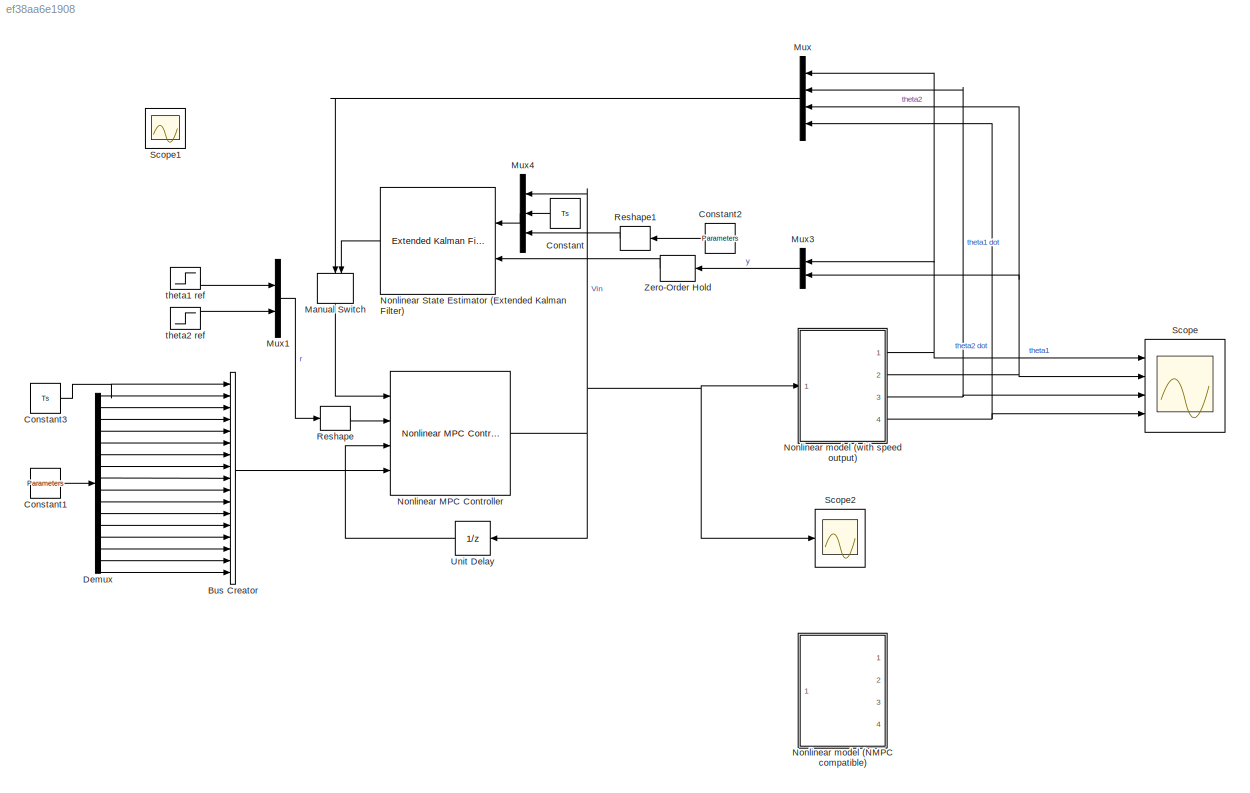
MODEL slx_ef38aa6e1908
KIND model
CONFIG AbsTol = auto
CONFIG EnableMultiTasking = off
CONFIG FixedStep = Ts/10
CONFIG MaxStep = 1e-3
CONFIG MinStep = auto
CONFIG RelTol = 1e-3
CONFIG SampleTimeConstraint = Unconstrained
CONFIG Solver = ode4
CONFIG SolverName = ode4
CONFIG StartTime = 0.0
CONFIG StopTime = Duration
BLOCK [BusCreator] Bus Creator
  DisplayOption = bar
  InheritFromInputs = on
  Inputs = 17
  NonVirtualBus = on
  OutDataTypeStr = Bus: customBusObject
  Ports = [17, 1]
BLOCK [Constant] Constant
  Value = Ts
BLOCK [Constant] Constant1
  Value = Parameters
BLOCK [Constant] Constant2
  Value = Parameters
BLOCK [Constant] Constant3
  Value = Ts
BLOCK [Demux] Demux
  DisplayOption = bar
  Outputs = 16
  Ports = [1, 16]
BLOCK [ManualSwitch] Manual Switch
BLOCK [Mux] Mux
  DisplayOption = bar
  Ports = [4, 1]
BLOCK [Mux] Mux1
  DisplayOption = bar
  Inputs = 2
  Ports = [2, 1]
BLOCK [Mux] Mux3
  DisplayOption = bar
  Inputs = 2
  Ports = [2, 1]
BLOCK [Mux] Mux4
  DisplayOption = bar
  Inputs = 3
  Ports = [3, 1]
BLOCK [Reference] Nonlinear MPC Controller  REF=mpclib/Nonlinear MPC Controller  (lib defined in mdl_ae329e0e0455)
  Ports = [4, 1]
  SourceBlock = mpclib/Nonlinear MPC Controller
  SourceProductBaseCode = MP
  SourceProductName = Model Predictive Control Toolbox
  SourceType = NonlinearMPC
BLOCK [Reference] Nonlinear State Estimator (Extended Kalman Filter)  REF=sharedTrackingLibrary/Extended Kalman Filter
  Ports = [2, 1]
  SourceBlock = sharedTrackingLibrary/Extended Kalman Filter
  SourceProductBaseCode = DR
  SourceProductName = Automated Driving Toolbox
  SourceType = Extended Kalman Filter
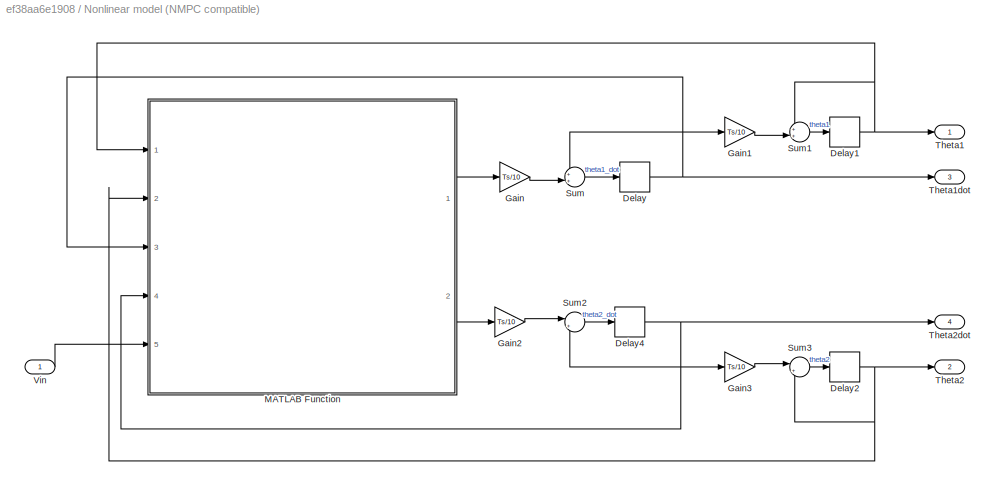
BLOCK [SubSystem] Nonlinear model (NMPC compatible)
  Ports = [1, 4]
  RequestExecContextInheritance = off
BLOCK [Delay] Nonlinear model (NMPC compatible)/Delay
  DelayLength = 1
  InputPortMap = u0
  Ports = [1, 1]
BLOCK [Delay] Nonlinear model (NMPC compatible)/Delay1
  DelayLength = 1
  InputPortMap = u0
  Ports = [1, 1]
BLOCK [Delay] Nonlinear model (NMPC compatible)/Delay2
  DelayLength = 1
  InputPortMap = u0
  Ports = [1, 1]
BLOCK [Delay] Nonlinear model (NMPC compatible)/Delay4
  DelayLength = 1
  InputPortMap = u0
  Ports = [1, 1]
BLOCK [Gain] Nonlinear model (NMPC compatible)/Gain
  Gain = Ts/10
  OutDataTypeStr = Inherit: Inherit via internal rule
  ParamDataTypeStr = Inherit: Inherit via internal rule
  SaturateOnIntegerOverflow = off
BLOCK [Gain] Nonlinear model (NMPC compatible)/Gain1
  Gain = Ts/10
  OutDataTypeStr = Inherit: Inherit via internal rule
  ParamDataTypeStr = Inherit: Inherit via internal rule
  SaturateOnIntegerOverflow = off
BLOCK [Gain] Nonlinear model (NMPC compatible)/Gain2
  Gain = Ts/10
  OutDataTypeStr = Inherit: Inherit via internal rule
  ParamDataTypeStr = Inherit: Inherit via internal rule
  SaturateOnIntegerOverflow = off
BLOCK [Gain] Nonlinear model (NMPC compatible)/Gain3
  Gain = Ts/10
  OutDataTypeStr = Inherit: Inherit via internal rule
  ParamDataTypeStr = Inherit: Inherit via internal rule
  SaturateOnIntegerOverflow = off
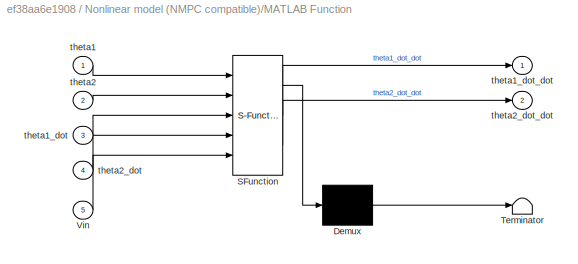
BLOCK [SubSystem] Nonlinear model (NMPC compatible)/MATLAB Function
  ErrorFcn = Stateflow.Translate.translate
  PermitHierarchicalResolution = ExplicitOnly
  Ports = [5, 2]
  RequestExecContextInheritance = off
  SFBlockType = MATLAB Function
  SystemSampleTime = 0.01
  TreatAsAtomicUnit = on
BLOCK [Demux] Nonlinear model (NMPC compatible)/MATLAB Function/ Demux 
  DisplayOption = bar
  Outputs = 1
  Ports = [1, 1]
BLOCK [S-Function] Nonlinear model (NMPC compatible)/MATLAB Function/ SFunction 
  EnableBusSupport = on
  FunctionName = sf_sfun
  PortCounts = [5 3]
  Ports = [5, 3]
  SFcnIsStateOwnerBlock = off
  SFunctionDeploymentMode = off
  Tag = Stateflow S-Function 5
BLOCK [Terminator] Nonlinear model (NMPC compatible)/MATLAB Function/ Terminator 
BLOCK [Inport] Nonlinear model (NMPC compatible)/MATLAB Function/Vin
  IconDisplay = Port number
  Port = 5
BLOCK [Inport] Nonlinear model (NMPC compatible)/MATLAB Function/theta1
  IconDisplay = Port number
BLOCK [Inport] Nonlinear model (NMPC compatible)/MATLAB Function/theta1_dot
  IconDisplay = Port number
  Port = 3
BLOCK [Outport] Nonlinear model (NMPC compatible)/MATLAB Function/theta1_dot_dot
  IconDisplay = Port number
BLOCK [Inport] Nonlinear model (NMPC compatible)/MATLAB Function/theta2
  IconDisplay = Port number
  Port = 2
BLOCK [Inport] Nonlinear model (NMPC compatible)/MATLAB Function/theta2_dot
  IconDisplay = Port number
  Port = 4
BLOCK [Outport] Nonlinear model (NMPC compatible)/MATLAB Function/theta2_dot_dot
  IconDisplay = Port number
  Port = 2
BLOCK [Sum] Nonlinear model (NMPC compatible)/Sum
  IconShape = round
  InputSameDT = off
  Inputs = ++|
  OutDataTypeStr = Inherit: Inherit via internal rule
  Ports = [2, 1]
  SaturateOnIntegerOverflow = off
BLOCK [Sum] Nonlinear model (NMPC compatible)/Sum1
  IconShape = round
  InputSameDT = off
  Inputs = ++|
  OutDataTypeStr = Inherit: Inherit via internal rule
  Ports = [2, 1]
  SaturateOnIntegerOverflow = off
BLOCK [Sum] Nonlinear model (NMPC compatible)/Sum2
  IconShape = round
  InputSameDT = off
  Inputs = |++
  OutDataTypeStr = Inherit: Inherit via internal rule
  Ports = [2, 1]
  SaturateOnIntegerOverflow = off
BLOCK [Sum] Nonlinear model (NMPC compatible)/Sum3
  IconShape = round
  InputSameDT = off
  Inputs = |++
  OutDataTypeStr = Inherit: Inherit via internal rule
  Ports = [2, 1]
  SaturateOnIntegerOverflow = off
BLOCK [Outport] Nonlinear model (NMPC compatible)/Theta1
  IconDisplay = Port number
BLOCK [Outport] Nonlinear model (NMPC compatible)/Theta1dot
  IconDisplay = Port number
  Port = 3
BLOCK [Outport] Nonlinear model (NMPC compatible)/Theta2
  IconDisplay = Port number
  Port = 2
BLOCK [Outport] Nonlinear model (NMPC compatible)/Theta2dot
  IconDisplay = Port number
  Port = 4
BLOCK [Inport] Nonlinear model (NMPC compatible)/Vin
  IconDisplay = Port number
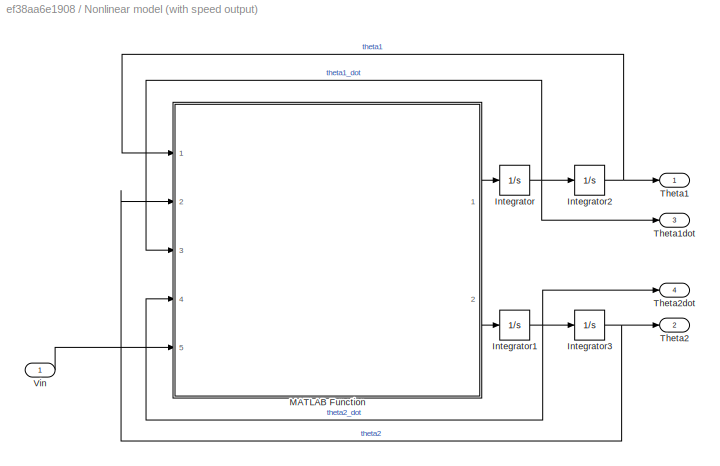
BLOCK [SubSystem] Nonlinear model (with speed output)
  Ports = [1, 4]
  RequestExecContextInheritance = off
BLOCK [Integrator] Nonlinear model (with speed output)/Integrator
  Ports = [1, 1]
BLOCK [Integrator] Nonlinear model (with speed output)/Integrator1
  Ports = [1, 1]
BLOCK [Integrator] Nonlinear model (with speed output)/Integrator2
  Ports = [1, 1]
BLOCK [Integrator] Nonlinear model (with speed output)/Integrator3
  Ports = [1, 1]
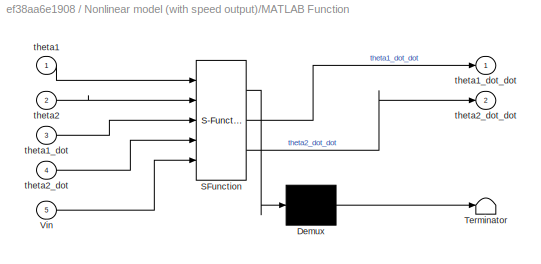
BLOCK [SubSystem] Nonlinear model (with speed output)/MATLAB Function
  ErrorFcn = Stateflow.Translate.translate
  PermitHierarchicalResolution = ExplicitOnly
  Ports = [5, 2]
  RequestExecContextInheritance = off
  SFBlockType = MATLAB Function
  TreatAsAtomicUnit = on
BLOCK [Demux] Nonlinear model (with speed output)/MATLAB Function/ Demux 
  DisplayOption = bar
  Outputs = 1
  Ports = [1, 1]
BLOCK [S-Function] Nonlinear model (with speed output)/MATLAB Function/ SFunction 
  EnableBusSupport = on
  FunctionName = sf_sfun
  Parameters = Pars
  PortCounts = [5 3]
  Ports = [5, 3]
  SFcnIsStateOwnerBlock = off
  SFunctionDeploymentMode = off
  Tag = Stateflow S-Function 4
BLOCK [Terminator] Nonlinear model (with speed output)/MATLAB Function/ Terminator 
BLOCK [Inport] Nonlinear model (with speed output)/MATLAB Function/Vin
  IconDisplay = Port number
  Port = 5
BLOCK [Inport] Nonlinear model (with speed output)/MATLAB Function/theta1
  IconDisplay = Port number
BLOCK [Inport] Nonlinear model (with speed output)/MATLAB Function/theta1_dot
  IconDisplay = Port number
  Port = 3
BLOCK [Outport] Nonlinear model (with speed output)/MATLAB Function/theta1_dot_dot
  IconDisplay = Port number
BLOCK [Inport] Nonlinear model (with speed output)/MATLAB Function/theta2
  IconDisplay = Port number
  Port = 2
BLOCK [Inport] Nonlinear model (with speed output)/MATLAB Function/theta2_dot
  IconDisplay = Port number
  Port = 4
BLOCK [Outport] Nonlinear model (with speed output)/MATLAB Function/theta2_dot_dot
  IconDisplay = Port number
  Port = 2
BLOCK [Outport] Nonlinear model (with speed output)/Theta1
  IconDisplay = Port number
BLOCK [Outport] Nonlinear model (with speed output)/Theta1dot
  IconDisplay = Port number
  Port = 3
BLOCK [Outport] Nonlinear model (with speed output)/Theta2
  IconDisplay = Port number
  Port = 2
BLOCK [Outport] Nonlinear model (with speed output)/Theta2dot
  IconDisplay = Port number
  Port = 4
BLOCK [Inport] Nonlinear model (with speed output)/Vin
  IconDisplay = Port number
BLOCK [Reshape] Reshape
  OutputDimensionality = Row vector (2-D)
  Ports = [1, 1]
BLOCK [Reshape] Reshape1
  OutputDimensionality = Column vector (2-D)
  Ports = [1, 1]
BLOCK [Scope] Scope
  Floating = off
  NumInputPorts = 4
  Ports = [4]
  ScopeSpecificationString = Simulink.scopes.TimeScopeBlockCfg('CurrentConfiguration', extmgr.ConfigurationSet(extmgr.Configuration('Core','General UI',true),extmgr.Configuration('Core','Source UI',true),extmgr.Configuration('Sources','WiredSimulink',true,'DataLoggingSaveFormat','StructureWithTime','DataLoggingDecimation','1','DataLoggingDecimateData',true),extmgr.Configuration('Visuals','Time Domain',true,'SerializedDisplays...<+3668ch>
BLOCK [Scope] Scope1
  Floating = off
  IOType = viewer
  NumInputPorts = 1
  Ports = []
  ScopeSpecificationString = Simulink.scopes.TimeScopeBlockCfg('CurrentConfiguration', extmgr.ConfigurationSet(extmgr.Configuration('Core','General UI',true),extmgr.Configuration('Core','Source UI',true),extmgr.Configuration('Sources','WiredSimulink',true,'DataLoggingMaxPoints','7500','DataLoggingLimitDataPoints',true,'DataLoggingSaveFormat','Array','DataLoggingDecimation','1','DataLoggingDecimateData',true),extmgr.Configurat...<+1708ch>
BLOCK [Scope] Scope2
  Floating = off
  NumInputPorts = 1
  Ports = [1]
  ScopeSpecificationString = Simulink.scopes.TimeScopeBlockCfg('CurrentConfiguration', extmgr.ConfigurationSet(extmgr.Configuration('Core','General UI',true),extmgr.Configuration('Core','Source UI',true),extmgr.Configuration('Sources','WiredSimulink',true,'DataLoggingSaveFormat','StructureWithTime','DataLoggingDecimation','1','DataLoggingVariableName','ScopeData1'),extmgr.Configuration('Visuals','Time Domain',true,'Serialized...<+1550ch>
BLOCK [UnitDelay] Unit Delay
  HasFrameUpgradeWarning = on
  SampleTime = -1
BLOCK [ZeroOrderHold] Zero-Order Hold
  SampleTime = Ts
BLOCK [Step] theta1 ref
  After = yref(1)
  SampleTime = 0
  Time = 10
BLOCK [Step] theta2 ref
  After = yref(2)
  SampleTime = 0
  Time = 0
LINE Bus Creator:1 -> Nonlinear MPC Controller:4
LINE Constant1:1 -> Demux:1
LINE Constant2:1 -> Reshape1:1
LINE Constant3:1 -> Bus Creator:1
LINE Constant:1 -> Mux4:2
LINE Demux:1 -> Bus Creator:2
LINE Demux:10 -> Bus Creator:11
LINE Demux:11 -> Bus Creator:12
LINE Demux:12 -> Bus Creator:13
LINE Demux:13 -> Bus Creator:14
LINE Demux:14 -> Bus Creator:15
LINE Demux:15 -> Bus Creator:16
LINE Demux:16 -> Bus Creator:17
LINE Demux:2 -> Bus Creator:3
LINE Demux:3 -> Bus Creator:4
LINE Demux:4 -> Bus Creator:5
LINE Demux:5 -> Bus Creator:6
LINE Demux:6 -> Bus Creator:7
LINE Demux:7 -> Bus Creator:8
LINE Demux:8 -> Bus Creator:9
LINE Demux:9 -> Bus Creator:10
LINE Manual Switch:1 -> Nonlinear MPC Controller:1
LINE Mux1:1 -> Reshape:1
LINE Mux3:1 -> Zero-Order Hold:1
LINE Mux4:1 -> Nonlinear State Estimator (Extended Kalman Filter):1
LINE Mux:1 -> Manual Switch:1
NET Nonlinear MPC Controller:1 -> Mux4:1, Nonlinear model (with speed output):1, Scope2:1, Unit Delay:1
LINE Nonlinear State Estimator (Extended Kalman Filter):1 -> Manual Switch:2
NET Nonlinear model (NMPC compatible)/Delay1:1 -> Nonlinear model (NMPC compatible)/MATLAB Function:1, Nonlinear model (NMPC compatible)/Sum1:1, Nonlinear model (NMPC compatible)/Theta1:1
NET Nonlinear model (NMPC compatible)/Delay2:1 -> Nonlinear model (NMPC compatible)/MATLAB Function:2, Nonlinear model (NMPC compatible)/Sum3:2, Nonlinear model (NMPC compatible)/Theta2:1
NET Nonlinear model (NMPC compatible)/Delay4:1 -> Nonlinear model (NMPC compatible)/Gain3:1, Nonlinear model (NMPC compatible)/MATLAB Function:4, Nonlinear model (NMPC compatible)/Sum2:2, Nonlinear model (NMPC compatible)/Theta2dot:1
NET Nonlinear model (NMPC compatible)/Delay:1 -> Nonlinear model (NMPC compatible)/Gain1:1, Nonlinear model (NMPC compatible)/MATLAB Function:3, Nonlinear model (NMPC compatible)/Sum:1, Nonlinear model (NMPC compatible)/Theta1dot:1
LINE Nonlinear model (NMPC compatible)/Gain1:1 -> Nonlinear model (NMPC compatible)/Sum1:2
LINE Nonlinear model (NMPC compatible)/Gain2:1 -> Nonlinear model (NMPC compatible)/Sum2:1
LINE Nonlinear model (NMPC compatible)/Gain3:1 -> Nonlinear model (NMPC compatible)/Sum3:1
LINE Nonlinear model (NMPC compatible)/Gain:1 -> Nonlinear model (NMPC compatible)/Sum:2
LINE Nonlinear model (NMPC compatible)/MATLAB Function:1 -> Nonlinear model (NMPC compatible)/Gain:1
LINE Nonlinear model (NMPC compatible)/MATLAB Function:2 -> Nonlinear model (NMPC compatible)/Gain2:1
LINE Nonlinear model (NMPC compatible)/Sum1:1 -> Nonlinear model (NMPC compatible)/Delay1:1
LINE Nonlinear model (NMPC compatible)/Sum2:1 -> Nonlinear model (NMPC compatible)/Delay4:1
LINE Nonlinear model (NMPC compatible)/Sum3:1 -> Nonlinear model (NMPC compatible)/Delay2:1
LINE Nonlinear model (NMPC compatible)/Sum:1 -> Nonlinear model (NMPC compatible)/Delay:1
LINE Nonlinear model (NMPC compatible)/Vin:1 -> Nonlinear model (NMPC compatible)/MATLAB Function:5
NET Nonlinear model (with speed output)/Integrator1:1 -> Nonlinear model (with speed output)/Integrator3:1, Nonlinear model (with speed output)/MATLAB Function:4, Nonlinear model (with speed output)/Theta2dot:1
NET Nonlinear model (with speed output)/Integrator2:1 -> Nonlinear model (with speed output)/MATLAB Function:1, Nonlinear model (with speed output)/Theta1:1
NET Nonlinear model (with speed output)/Integrator3:1 -> Nonlinear model (with speed output)/MATLAB Function:2, Nonlinear model (with speed output)/Theta2:1
NET Nonlinear model (with speed output)/Integrator:1 -> Nonlinear model (with speed output)/Integrator2:1, Nonlinear model (with speed output)/MATLAB Function:3, Nonlinear model (with speed output)/Theta1dot:1
LINE Nonlinear model (with speed output)/MATLAB Function:1 -> Nonlinear model (with speed output)/Integrator:1
LINE Nonlinear model (with speed output)/MATLAB Function:2 -> Nonlinear model (with speed output)/Integrator1:1
LINE Nonlinear model (with speed output)/Vin:1 -> Nonlinear model (with speed output)/MATLAB Function:5
NET Nonlinear model (with speed output):1 -> Mux3:1, Mux:1, Scope:1
NET Nonlinear model (with speed output):2 -> Mux3:2, Mux:3, Scope:2
NET Nonlinear model (with speed output):3 -> Mux:2, Scope:3
NET Nonlinear model (with speed output):4 -> Mux:4, Scope:4
LINE Reshape1:1 -> Mux4:3
LINE Reshape:1 -> Nonlinear MPC Controller:2
LINE Unit Delay:1 -> Nonlinear MPC Controller:3
LINE Zero-Order Hold:1 -> Nonlinear State Estimator (Extended Kalman Filter):2
LINE theta1 ref:1 -> Mux1:1
LINE theta2 ref:1 -> Mux1:2
note: NET lines group one-source signal fan-out (src -> all destinations, sorted); 1:1 wires keep LINE
CHART Nonlinear model
(with speed output)/MATLAB Function states=1 transitions=1
  STATE_LABEL 'eML_blk_kernel()'
  STATE_LABEL 'SCRIPT:\nfunction [theta1_dot_dot,theta2_dot_dot] = fcn(theta1, theta2, theta1_dot, theta2_dot,Vin, Pars)\n\n   k1 = Pars.Jeq + Pars.m2*(Pars.l1^2 + Pars.x2^2*sin(theta2)^2);\n   k2 = Pars.m2*Pars.l1*Pars.x2*cos(theta2);\n   k3 = 2*Pars.m2*Pars.x2^2*sin(theta2)*cos(theta2)*theta1_dot*theta2_dot - Pars.m2*Pars.l1*Pars.x2*sin(theta2)*theta2_dot^2 +Pars.Ks*theta1 - Pars.Km/Pars.Rm*Vin + (Pars.Km^2)/Pars.R...<+346ch>'
CHART Nonlinear model
(NMPC compatible)/MATLAB Function states=1 transitions=1
  STATE_LABEL 'eML_blk_kernel()'
  STATE_LABEL 'SCRIPT:\nfunction [theta1_dot_dot,theta2_dot_dot] = fcn(theta1, theta2, theta1_dot, theta2_dot,Vin)\n\nI2 = 3.3282e-05;\nJeq = 0.000218402411979831;\nJm = 1.06213827371616e-05;\nKf1 = 0.0012344901742702;\nKf2 = 8.2e-06;\nKm = 0.0440322469888582;\nKs = 0.00254811332665515;\nRm = 8.144416394006;\nbm = 2.22181496841977e-14;\ng = 9.81;\nl1 = 0.085;\nl2 = 0.129;\nm1 = 0.095;\nm2 = 0.024;\nx1 = 0.0425;\nx2 = 0.0645;\n\n   ...<+522ch>'
